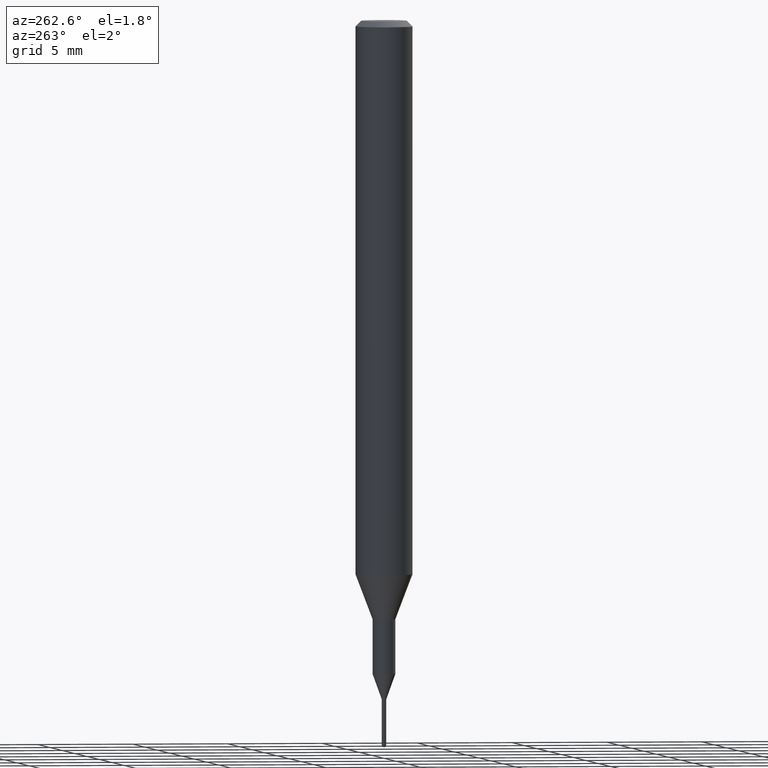
[diagram: clean part render]
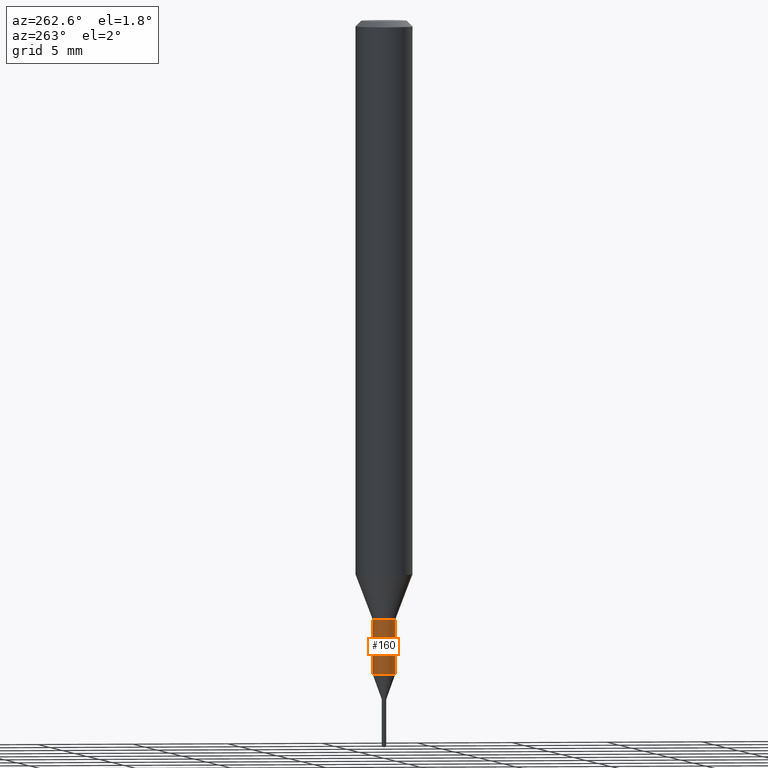
[diagram: same view with one face highlighted and labeled with its STEP entity id]
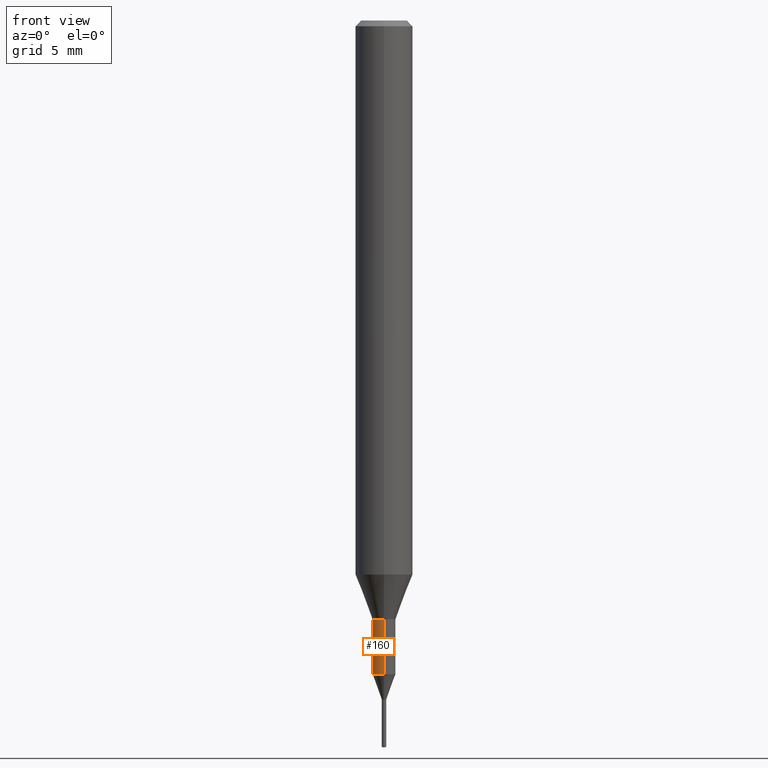
[diagram: same view with one face highlighted and labeled with its STEP entity id]
A machine part, auxiliary view. The second image highlights one B-rep face of the part: STEP entity #160.
A second angle (front view) of the same face is appended — the face is thin or edge-on in the first view.
In plain terms, the highlighted cylindrical surface (edge-blend (fillet) strip) has radius 0.5999 mm, axis along (-0, -0, 1).
Its self-contained STEP definition (entity closure, byte-faithful):
#112=VERTEX_POINT('',#289);
#130=EDGE_CURVE('',#186,#142,#310,.T.);
#142=VERTEX_POINT('',#323);
#152=EDGE_CURVE('',#112,#186,#334,.T.);
#158=EDGE_CURVE('',#112,#164,#340,.T.);
#160=ADVANCED_FACE('',(#342),#343,.T.);
#164=VERTEX_POINT('',#347);
#186=VERTEX_POINT('',#375);
#198=EDGE_CURVE('',#142,#164,#388,.T.);
#289=CARTESIAN_POINT('',(7.34702581975735E-017,-0.59995,-34.167));
#310=CIRCLE('',#503,0.59995);
#323=CARTESIAN_POINT('',(0.0,0.59995,-31.3));
#334=LINE('',#538,#539);
#340=CIRCLE('',#548,0.59995);
#342=FACE_OUTER_BOUND('',#550,.T.);
#343=CYLINDRICAL_SURFACE('',#551,0.59995);
#347=CARTESIAN_POINT('',(0.0,0.59995,-34.167));
#375=CARTESIAN_POINT('',(7.34702581975735E-017,-0.59995,-31.3));
#388=LINE('',#604,#605);
#503=AXIS2_PLACEMENT_3D('',#740,#741,#742);
#538=CARTESIAN_POINT('',(7.34702581975735E-017,-0.59995,-32.7335));
#539=VECTOR('',#769,1.0);
#548=AXIS2_PLACEMENT_3D('',#771,#772,#773);
#550=EDGE_LOOP('',(#775,#776,#777,#778));
#551=AXIS2_PLACEMENT_3D('',#779,#780,#781);
#604=CARTESIAN_POINT('',(-7.34702581975735E-017,0.59995,-32.7335));
#605=VECTOR('',#843,1.0);
#740=CARTESIAN_POINT('',(0.0,0.0,-31.3));
#741=DIRECTION('',(0.0,0.0,-1.0));
#742=DIRECTION('',(0.0,1.0,0.0));
#769=DIRECTION('',(-0.0,-0.0,1.0));
#771=CARTESIAN_POINT('',(0.0,0.0,-34.167));
#772=DIRECTION('',(0.0,0.0,-1.0));
#773=DIRECTION('',(0.0,1.0,0.0));
#775=ORIENTED_EDGE('',*,*,#198,.T.);
#776=ORIENTED_EDGE('',*,*,#158,.F.);
#777=ORIENTED_EDGE('',*,*,#152,.T.);
#778=ORIENTED_EDGE('',*,*,#130,.T.);
#779=CARTESIAN_POINT('',(0.0,0.0,-32.7335));
#780=DIRECTION('',(-0.0,-0.0,1.0));
#781=DIRECTION('',(0.0,1.0,0.0));
#843=DIRECTION('',(0.0,0.0,-1.0));